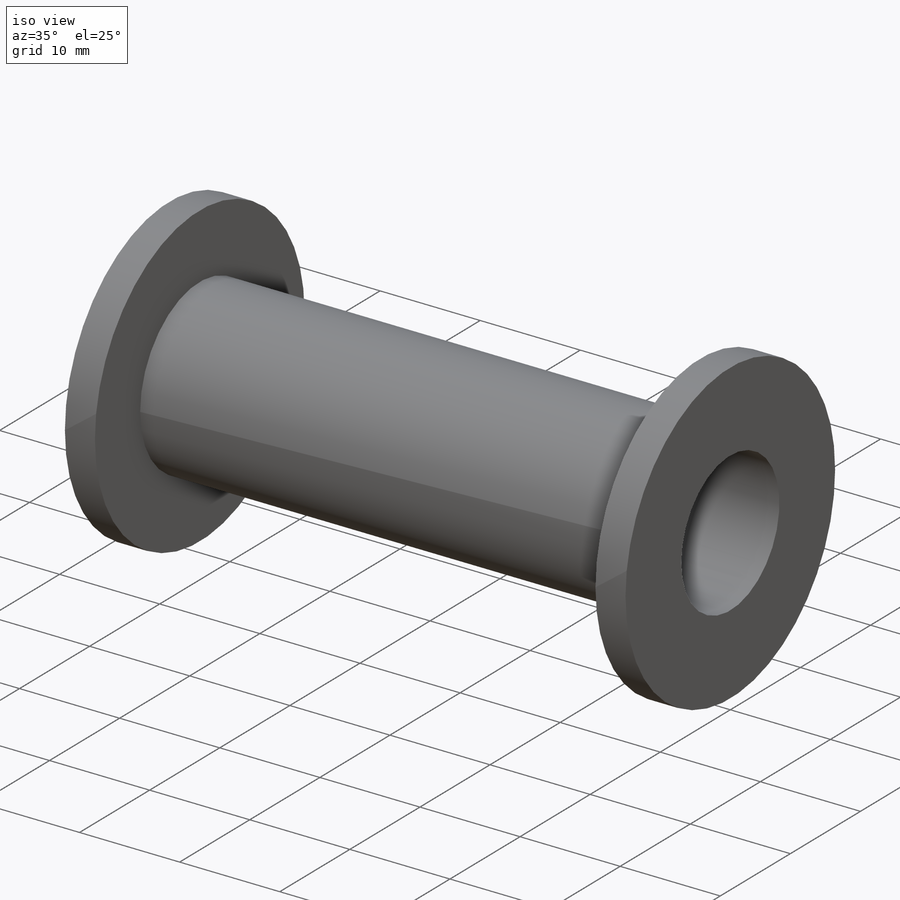
[diagram: iso view]
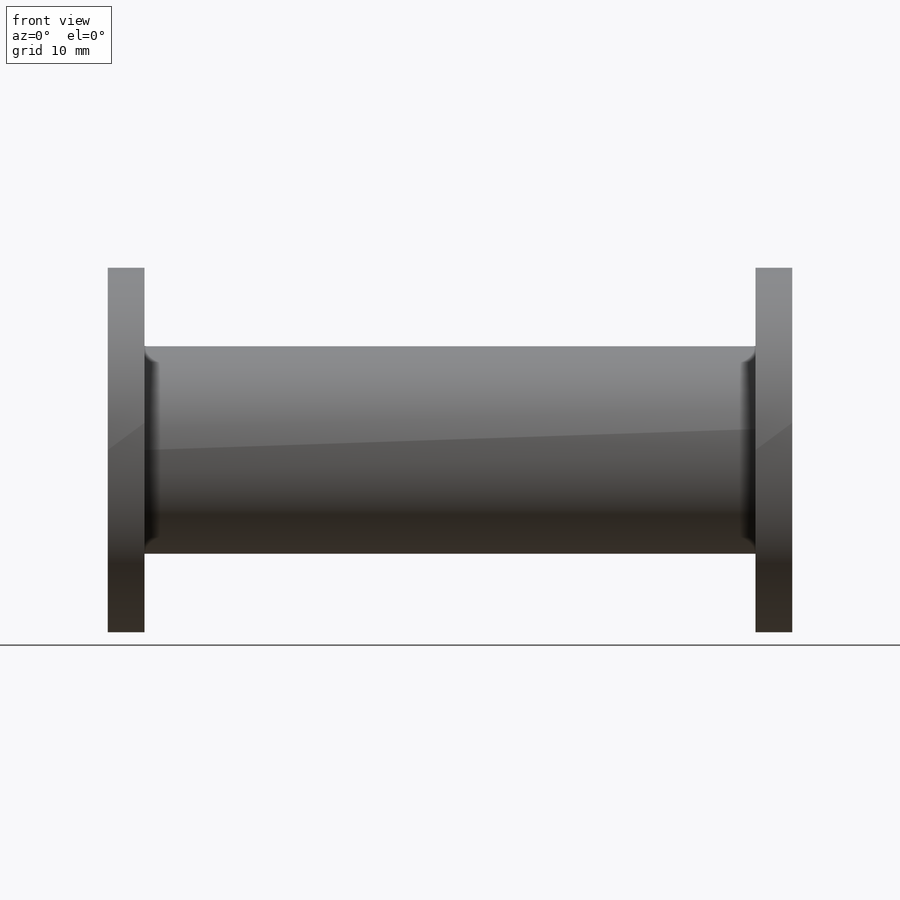
[diagram: front view]
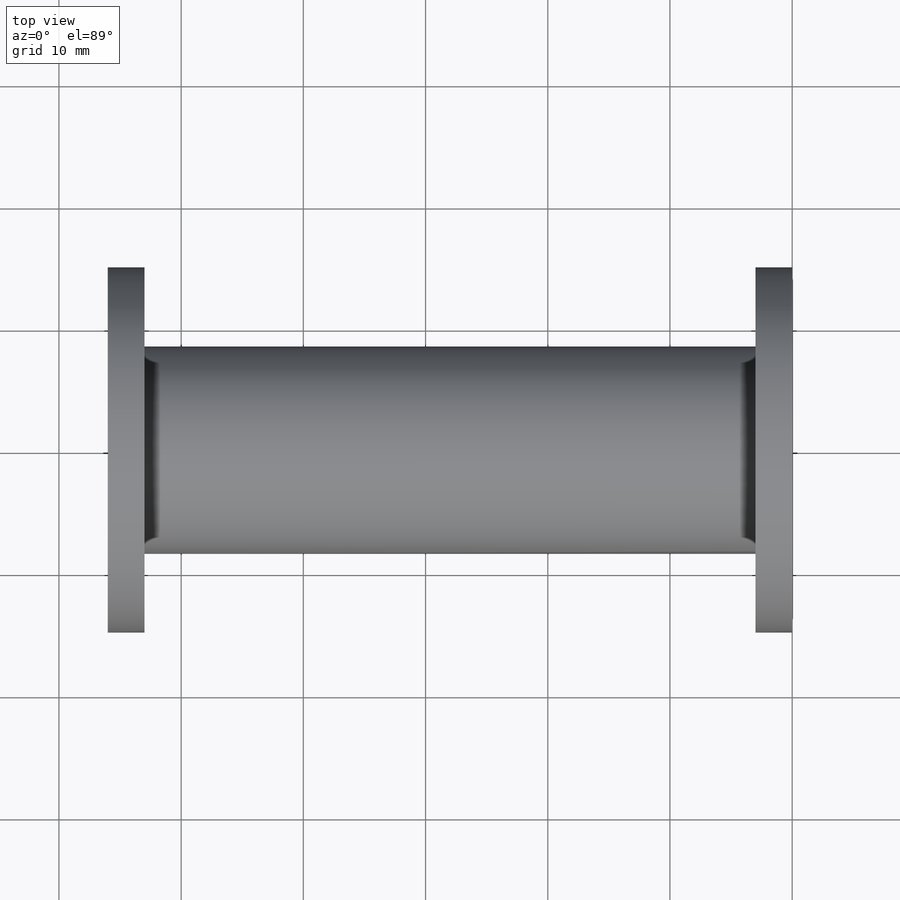
[diagram: top view]
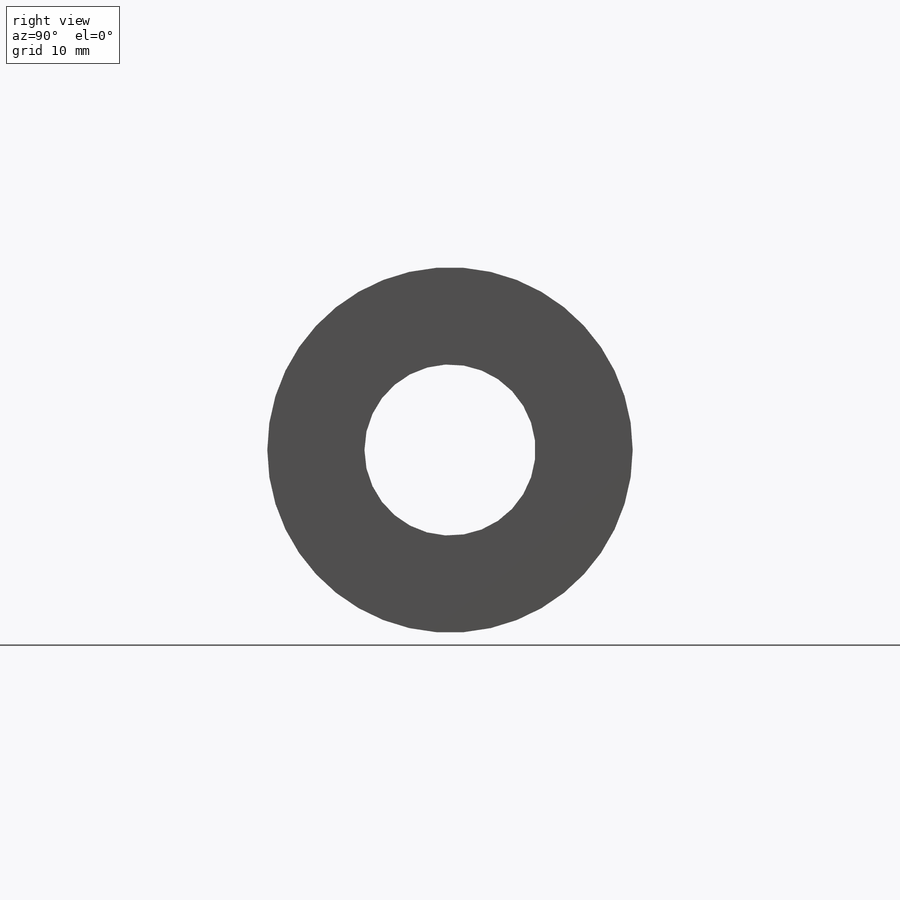
[diagram: right view]
SOLIDWORKS PART (.sldprt)
format: sldprt  version: not decoded by parser v0  size: 193,536 bytes
history: native  units: mm
features: plane x4, sketch x4, cut_extrude x2, material x1, revolve x1 (+9 scaffold rows collapsed)
feature tree (21):
  scaffold x9  (default folders/planes/origin — collapsed)
  material  "Material <não especificado>"
  plane  "Plano frontal"
  plane  "Plano superior"
  plane  "Plano direito"
  sketch  "Esboço1"  dims[c1.D1=29.9mm c1.D2=17.0mm c2.D1=29.9mm c2.D3=3.0mm c2.D4=3.0mm c2.D5=56.0mm c2.D6=29.9mm c2.D7=14.0mm]
  revolve  "Revolução1"  Angle=360deg
  sketch  "Esboço2"  dims[D1=0.0mm]
  cut_extrude  "Corte-extrusão1"  Depth=1mm
  sketch  "Esboço3"
  cut_extrude  "Corte-extrusão2"  Depth=1mm
  sketch  "Esboço4"
  plane  "Plano1"  Offset=28mm
decode coverage: 5 of 7 modeling features carry decoded parameters
note: suppression state not decoded; provenance and decode notes live in map.json
